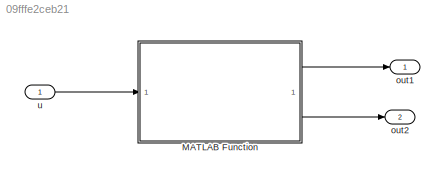
MODEL slx_09fffe2ceb21
KIND model
CONFIG AbsTol = auto
CONFIG EnableMultiTasking = off
CONFIG FixedStep = auto
CONFIG MaxStep = auto
CONFIG MinStep = auto
CONFIG RelTol = 1e-3
CONFIG SampleTimeConstraint = Unconstrained
CONFIG SolverName = VariableStepAuto
CONFIG StartTime = 0.0
CONFIG StopTime = 10.0
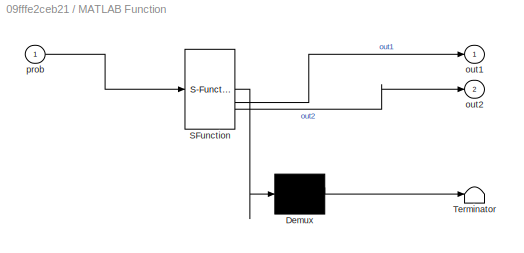
BLOCK [SubSystem] MATLAB Function
  ErrorFcn = Stateflow.Translate.translate
  PermitHierarchicalResolution = ExplicitOnly
  SFBlockType = MATLAB Function
  TreatAsAtomicUnit = on
BLOCK [Demux] MATLAB Function/ Demux 
  Outputs = 1
BLOCK [S-Function] MATLAB Function/ SFunction 
  EnableBusSupport = off
  FunctionName = sf_sfun
  PortCounts = [1 3]
  SFcnIsStateOwnerBlock = off
  SFunctionDeploymentMode = off
  Tag = Stateflow S-Function 2
BLOCK [Terminator] MATLAB Function/ Terminator 
BLOCK [Outport] MATLAB Function/out1
BLOCK [Outport] MATLAB Function/out2
  Port = 2
BLOCK [Inport] MATLAB Function/prob
BLOCK [Outport] out1
BLOCK [Outport] out2
  Port = 2
BLOCK [Inport] u
LINE MATLAB Function:1 -> out1:1
LINE MATLAB Function:2 -> out2:1
LINE u:1 -> MATLAB Function:1
CHART MATLAB Function states=1 transitions=1
  STATE_LABEL 'eML_blk_kernel()'
  STATE_LABEL 'SCRIPT:\nfunction [out1, out2] = update(prob)\n    r = rand();\n    \n    if r < 0.7\n        out1 = 1;\n        out2 = 0;\n    else\n        out1 = 0;\n        out2 = 1;\n    end\nend\n'
CHART  states=0 transitions=0
